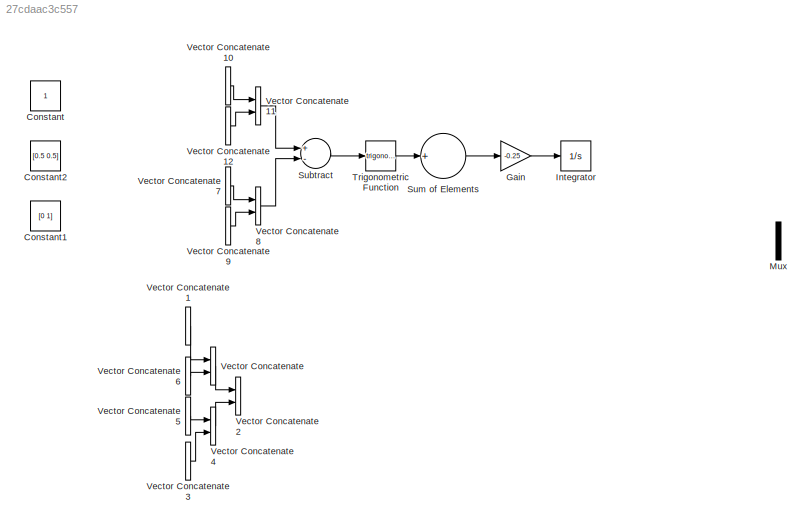
MODEL slx_27cdaac3c557
KIND model
CONFIG AbsTol = auto
CONFIG EnableMultiTasking = off
CONFIG FixedStep = auto
CONFIG MaxStep = auto
CONFIG MinStep = auto
CONFIG RelTol = 1e-3
CONFIG SampleTimeConstraint = Unconstrained
CONFIG Solver = VariableStepAuto
CONFIG SolverName = VariableStepAuto
CONFIG StartTime = 0.0
CONFIG StopTime = 10.0
BLOCK [Constant] Constant
BLOCK [Constant] Constant1
  Value = [0 1]
BLOCK [Constant] Constant2
  Value = [0.5 0.5]
BLOCK [Gain] Gain
  Gain = -0.25
  OutDataTypeStr = Inherit: Inherit via internal rule
  ParamDataTypeStr = Inherit: Inherit via internal rule
  SaturateOnIntegerOverflow = off
BLOCK [Integrator] Integrator
  Ports = [1, 1]
BLOCK [Mux] Mux
  DisplayOption = bar
  Ports = [4, 1]
BLOCK [Sum] Subtract
  InputSameDT = off
  Inputs = +-
  OutDataTypeStr = Inherit: Inherit via internal rule
  Ports = [2, 1]
  SaturateOnIntegerOverflow = off
BLOCK [Sum] Sum of Elements
  InputSameDT = off
  Inputs = +
  OutDataTypeStr = Inherit: Inherit via internal rule
  Ports = [1, 1]
  SaturateOnIntegerOverflow = off
BLOCK [Trigonometry] Trigonometric Function
  Ports = [1, 1]
BLOCK [Concatenate] Vector Concatenate
  Ports = [2, 1]
BLOCK [Concatenate] Vector Concatenate1
  Ports = [2, 1]
BLOCK [Concatenate] Vector Concatenate10
  Ports = [2, 1]
BLOCK [Concatenate] Vector Concatenate11
  Ports = [2, 1]
BLOCK [Concatenate] Vector Concatenate12
  Ports = [2, 1]
BLOCK [Concatenate] Vector Concatenate2
  Ports = [2, 1]
BLOCK [Concatenate] Vector Concatenate3
  Ports = [2, 1]
BLOCK [Concatenate] Vector Concatenate4
  Ports = [2, 1]
BLOCK [Concatenate] Vector Concatenate5
  Ports = [2, 1]
BLOCK [Concatenate] Vector Concatenate6
  Ports = [2, 1]
BLOCK [Concatenate] Vector Concatenate7
  Ports = [2, 1]
BLOCK [Concatenate] Vector Concatenate8
  Ports = [2, 1]
BLOCK [Concatenate] Vector Concatenate9
  Ports = [2, 1]
LINE Gain:1 -> Integrator:1
LINE Subtract:1 -> Trigonometric Function:1
LINE Sum of Elements:1 -> Gain:1
LINE Trigonometric Function:1 -> Sum of Elements:1
LINE Vector Concatenate10:1 -> Vector Concatenate11:1
LINE Vector Concatenate11:1 -> Subtract:1
LINE Vector Concatenate12:1 -> Vector Concatenate11:2
LINE Vector Concatenate1:1 -> Vector Concatenate:1
LINE Vector Concatenate3:1 -> Vector Concatenate4:2
LINE Vector Concatenate4:1 -> Vector Concatenate2:2
LINE Vector Concatenate5:1 -> Vector Concatenate4:1
LINE Vector Concatenate6:1 -> Vector Concatenate:2
LINE Vector Concatenate7:1 -> Vector Concatenate8:1
LINE Vector Concatenate8:1 -> Subtract:2
LINE Vector Concatenate9:1 -> Vector Concatenate8:2
LINE Vector Concatenate:1 -> Vector Concatenate2:1
